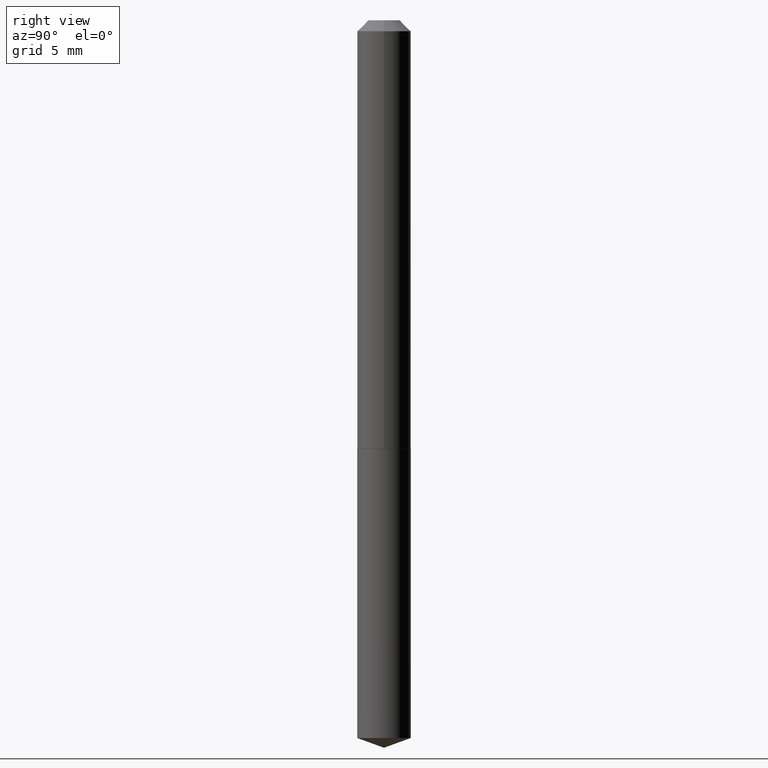
[diagram: clean part render]
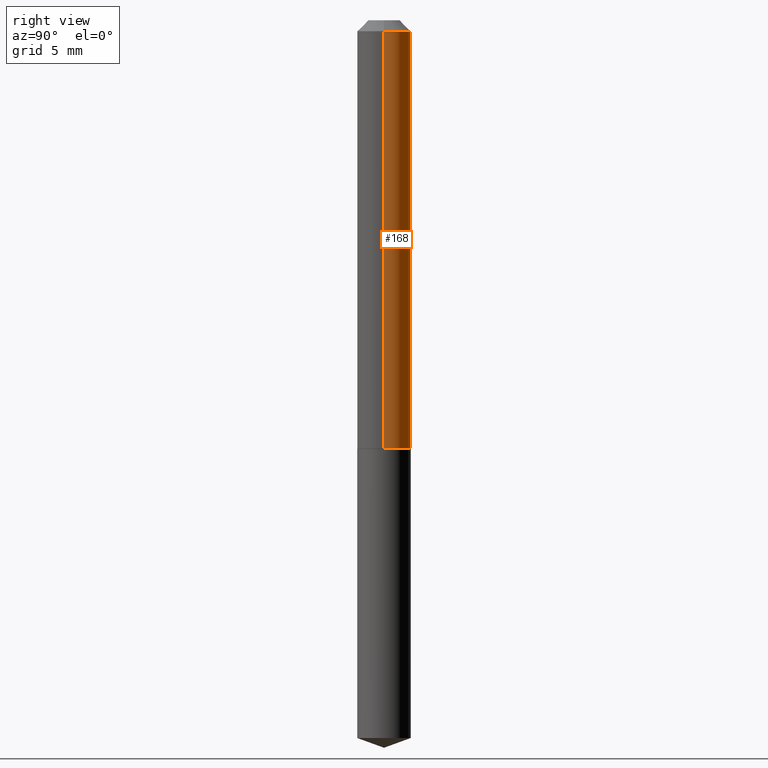
[diagram: same view with one face highlighted and labeled with its STEP entity id]
A machine part, right view. The second image highlights one B-rep face of the part: STEP entity #168.
In plain terms, the highlighted cylindrical surface (edge-blend (fillet) strip) has radius 1.9304 mm, axis along (-0, 0, 1).
Its self-contained STEP definition (entity closure, byte-faithful):
#45 = DIRECTION ( 'NONE',  ( -2.445468806185136877E-29, 3.491481338843145188E-15, 1.000000000000000000 ) ) ;
#49 = CARTESIAN_POINT ( 'NONE',  ( -0.07600000000000006750, 5.400124791776766209E-16, -3.738390668593732200E-30 ) ) ;
#79 = DIRECTION ( 'NONE',  ( 1.000000000000000000, -6.982962677686269077E-15, 0.000000000000000000 ) ) ;
#82 = DIRECTION ( 'NONE',  ( -2.445468806185136597E-29, 3.491481338843145583E-15, 1.000000000000000000 ) ) ;
#98 = CIRCLE ( 'NONE', #334, 0.07600000000000013689 ) ;
#101 = LINE ( 'NONE', #300, #383 ) ;
#103 = CARTESIAN_POINT ( 'NONE',  ( 0.000000000000000000, 0.000000000000000000, 0.000000000000000000 ) ) ;
#104 = CARTESIAN_POINT ( 'NONE',  ( 0.07599999999999999811, -6.398139553430053154E-16, -0.03125000000000020817 ) ) ;
#106 = LINE ( 'NONE', #49, #299 ) ;
#112 = EDGE_CURVE ( 'NONE', #232, #220, #98, .T. ) ;
#133 = CARTESIAN_POINT ( 'NONE',  ( 7.642090019328602662E-31, -1.091087918388490267E-16, -0.03125000000000020817 ) ) ;
#143 = EDGE_CURVE ( 'NONE', #247, #210, #158, .T. ) ;
#149 = EDGE_CURVE ( 'NONE', #232, #247, #101, .T. ) ;
#154 = CARTESIAN_POINT ( 'NONE',  ( -0.07599999999999999811, -1.633871089419536487E-15, -0.03125000000000020817 ) ) ;
#158 = CIRCLE ( 'NONE', #341, 0.07599999999999999811 ) ;
#168 = ADVANCED_FACE ( 'NONE', ( #250 ), #221, .T. ) ;
#192 = DIRECTION ( 'NONE',  ( 1.000000000000000000, -6.982962677686265922E-15, 0.000000000000000000 ) ) ;
#193 = AXIS2_PLACEMENT_3D ( 'NONE', #103, #82, #207 ) ;
#202 = DIRECTION ( 'NONE',  ( -2.445468806185136597E-29, 3.491481338843145583E-15, 1.000000000000000000 ) ) ;
#207 = DIRECTION ( 'NONE',  ( 1.000000000000000000, -6.982962677686267499E-15, 4.876176775795935793E-29 ) ) ;
#208 = ORIENTED_EDGE ( 'NONE', *, *, #112, .T. ) ;
#210 = VERTEX_POINT ( 'NONE', #154 ) ;
#211 = ORIENTED_EDGE ( 'NONE', *, *, #284, .T. ) ;
#220 = VERTEX_POINT ( 'NONE', #279 ) ;
#221 = CYLINDRICAL_SURFACE ( 'NONE', #193, 0.07600000000000006750 ) ;
#226 = DIRECTION ( 'NONE',  ( -2.445468806185136877E-29, 3.491481338843145188E-15, 1.000000000000000000 ) ) ;
#232 = VERTEX_POINT ( 'NONE', #273 ) ;
#243 = ORIENTED_EDGE ( 'NONE', *, *, #143, .F. ) ;
#247 = VERTEX_POINT ( 'NONE', #104 ) ;
#250 = FACE_OUTER_BOUND ( 'NONE', #346, .T. ) ;
#273 = CARTESIAN_POINT ( 'NONE',  ( 0.07600000000000013689, -4.769363508859736288E-15, -1.213999999999999968 ) ) ;
#279 = CARTESIAN_POINT ( 'NONE',  ( -0.07600000000000013689, -3.698645866177901283E-15, -1.213999999999999968 ) ) ;
#284 = EDGE_CURVE ( 'NONE', #220, #210, #106, .T. ) ;
#299 = VECTOR ( 'NONE', #226, 39.37007874015748143 ) ;
#300 = CARTESIAN_POINT ( 'NONE',  ( 0.07600000000000006750, -5.307051635041568064E-16, 3.705894349604914454E-30 ) ) ;
#305 = DIRECTION ( 'NONE',  ( -2.445468806185136597E-29, 3.491481338843145583E-15, 1.000000000000000000 ) ) ;
#331 = CARTESIAN_POINT ( 'NONE',  ( 2.968799130708755855E-29, -4.238658345355578692E-15, -1.213999999999999968 ) ) ;
#334 = AXIS2_PLACEMENT_3D ( 'NONE', #331, #202, #79 ) ;
#341 = AXIS2_PLACEMENT_3D ( 'NONE', #133, #305, #192 ) ;
#346 = EDGE_LOOP ( 'NONE', ( #208, #211, #243, #365 ) ) ;
#365 = ORIENTED_EDGE ( 'NONE', *, *, #149, .F. ) ;
#383 = VECTOR ( 'NONE', #45, 39.37007874015748143 ) ;